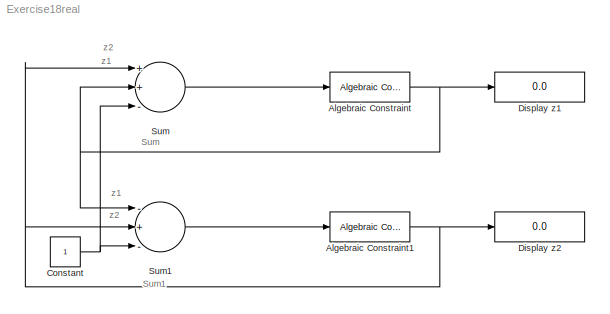
MODEL Exercise18real
KIND model
BLOCK [Reference] Algebraic Constraint  REF=simulink/Math\nOperations/Algebraic Constraint
  FunctionWithSeparateData = off
  Ports = [1, 1]
  RTWMemSecDataConstants = Inherit from model
  RTWMemSecDataInternal = Inherit from model
  RTWMemSecDataParameters = Inherit from model
  RTWMemSecFuncExecute = Inherit from model
  RTWMemSecFuncInitTerm = Inherit from model
  ShowPortLabels = FromPortIcon
  SourceBlock = simulink/Math\nOperations/Algebraic Constraint
  SourceType = Algebraic Constraint
  SystemSampleTime = -1
  z0 = 0
BLOCK [Reference] Algebraic Constraint1  REF=simulink/Math\nOperations/Algebraic Constraint
  FunctionWithSeparateData = off
  Ports = [1, 1]
  RTWMemSecDataConstants = Inherit from model
  RTWMemSecDataInternal = Inherit from model
  RTWMemSecDataParameters = Inherit from model
  RTWMemSecFuncExecute = Inherit from model
  RTWMemSecFuncInitTerm = Inherit from model
  ShowPortLabels = FromPortIcon
  SourceBlock = simulink/Math\nOperations/Algebraic Constraint
  SourceType = Algebraic Constraint
  SystemSampleTime = -1
  z0 = 0
BLOCK [Constant] Constant
  OutDataType = sfix(16)
  OutScaling = 2^0
BLOCK [Display] Display z1
  Decimation = 1
  Lockdown = off
  Ports = [1]
BLOCK [Display] Display z2
  Decimation = 1
  Lockdown = off
  Ports = [1]
BLOCK [Sum] Sum
  InputSameDT = off
  Inputs = ++-
  OutDataType = sfix(16)
  OutDataTypeMode = Inherit via internal rule
  OutDataTypeStr = Inherit: Inherit via internal rule
  OutScaling = 2^0
  Ports = [3, 1]
  SaturateOnIntegerOverflow = off
BLOCK [Sum] Sum1
  InputSameDT = off
  Inputs = -+-
  OutDataType = sfix(16)
  OutDataTypeMode = Inherit via internal rule
  OutDataTypeStr = Inherit: Inherit via internal rule
  OutScaling = 2^0
  Ports = [3, 1]
  SaturateOnIntegerOverflow = off
ANNOTATION (root): Sum
ANNOTATION (root): Sum1
ANNOTATION (root): z1
ANNOTATION (root): z2
NET Algebraic Constraint1:1 -> Display z2:1, Sum1:2, Sum:1
NET Algebraic Constraint:1 -> Display z1:1, Sum1:1, Sum:2
NET Constant:1 -> Sum1:3, Sum:3
LINE Sum1:1 -> Algebraic Constraint1:1
LINE Sum:1 -> Algebraic Constraint:1
note: NET lines group one-source signal fan-out (src -> all destinations, sorted); 1:1 wires keep LINE
